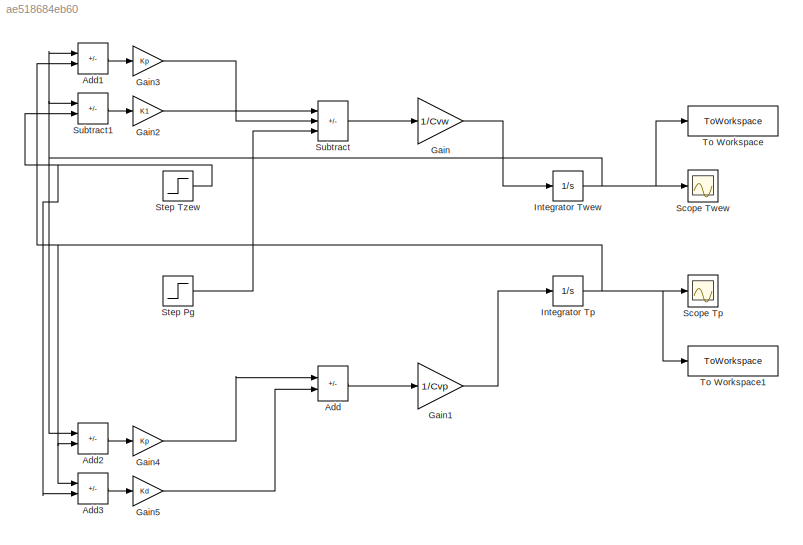
MODEL slx_ae518684eb60
KIND model
CONFIG AbsTol = auto
CONFIG EnableMultiTasking = off
CONFIG FixedStep = auto
CONFIG MaxStep = auto
CONFIG MinStep = auto
CONFIG RelTol = 1e-3
CONFIG SampleTimeConstraint = Unconstrained
CONFIG SolverName = VariableStepAuto
CONFIG StartTime = 0.0
CONFIG StopTime = 10.0
BLOCK [Sum] Add
  IconShape = rectangular
  Inputs = +-
BLOCK [Sum] Add1
  IconShape = rectangular
  Inputs = +-
BLOCK [Sum] Add2
  IconShape = rectangular
  Inputs = +-
BLOCK [Sum] Add3
  IconShape = rectangular
  Inputs = +-
BLOCK [Gain] Gain
  Gain = 1/Cvw
BLOCK [Gain] Gain1
  Gain = 1/Cvp
BLOCK [Gain] Gain2
  Gain = K1
BLOCK [Gain] Gain3
  Gain = Kp
BLOCK [Gain] Gain4
  Gain = Kp
BLOCK [Gain] Gain5
  Gain = Kd
BLOCK [Integrator] Integrator Tp
  InitialCondition = Tp0
BLOCK [Integrator] Integrator Twew
  InitialCondition = Twew0
BLOCK [Scope] Scope Tp
  Floating = off
  NumInputPorts = 1
  ScopeSpecificationString = Simulink.scopes.TimeScopeBlockCfg('CurrentConfiguration', extmgr.ConfigurationSet(extmgr.Configuration('Core','General UI',true),extmgr.Configuration('Core','Source UI',true),extmgr.Configuration('Sources','WiredSimulink',true,'DataLoggingVariableName','ScopeData1'),extmgr.Configuration('Visuals','Time Domain',true,'SerializedDisplays',{struct('MinYLimReal','5.99543','MaxYLimReal','25.99543','YLab...<+1463ch>
BLOCK [Scope] Scope Twew
  Floating = off
  NumInputPorts = 1
  ScopeSpecificationString = Simulink.scopes.TimeScopeBlockCfg('CurrentConfiguration', extmgr.ConfigurationSet(extmgr.Configuration('Core','General UI',true),extmgr.Configuration('Core','Source UI',true),extmgr.Configuration('Sources','WiredSimulink',true),extmgr.Configuration('Visuals','Time Domain',true,'SerializedDisplays',{struct('MinYLimReal','10.99737','MaxYLimReal','30.99737','YLabelReal','','MinYLimMag','10.99737','Ma...<+1459ch>
BLOCK [Step] Step Pg
  After = Pg0 + dPg
  Before = Pg0
  SampleTime = 0
  Time = czas_skoku
BLOCK [Step] Step Tzew
  After = Tzew0 + dTzew
  Before = Tzew0
  SampleTime = 0
  Time = czas_skoku
  VectorParams1D = off
BLOCK [Sum] Subtract
  IconShape = rectangular
  Inputs = --+
BLOCK [Sum] Subtract1
  IconShape = rectangular
  Inputs = +-
BLOCK [ToWorkspace] To Workspace
  FixptAsFi = on
  MaxDataPoints = inf
  SampleTime = -1
  VariableName = Twew
BLOCK [ToWorkspace] To Workspace1
  FixptAsFi = on
  MaxDataPoints = inf
  SampleTime = -1
  VariableName = Tp
LINE Add1:1 -> Gain3:1
LINE Add2:1 -> Gain4:1
LINE Add3:1 -> Gain5:1
LINE Add:1 -> Gain1:1
LINE Gain1:1 -> Integrator Tp:1
LINE Gain2:1 -> Subtract:2
LINE Gain3:1 -> Subtract:1
LINE Gain4:1 -> Add:1
LINE Gain5:1 -> Add:2
LINE Gain:1 -> Integrator Twew:1
NET Integrator Tp:1 -> Add1:2, Add2:2, Add3:1, Scope Tp:1, To Workspace1:1
NET Integrator Twew:1 -> Add1:1, Add2:1, Scope Twew:1, Subtract1:1, To Workspace:1
LINE Step Pg:1 -> Subtract:3
NET Step Tzew:1 -> Add3:2, Subtract1:2
LINE Subtract1:1 -> Gain2:1
LINE Subtract:1 -> Gain:1
note: NET lines group one-source signal fan-out (src -> all destinations, sorted); 1:1 wires keep LINE
